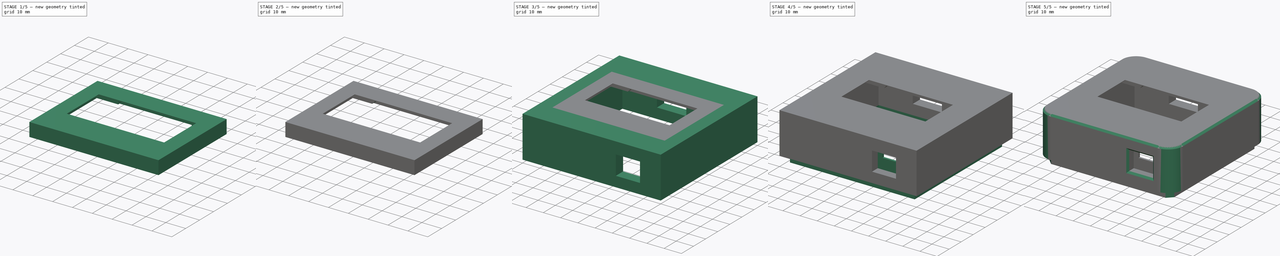
[diagram: build sequence overview — one tinted view per stage of 5, left to right]
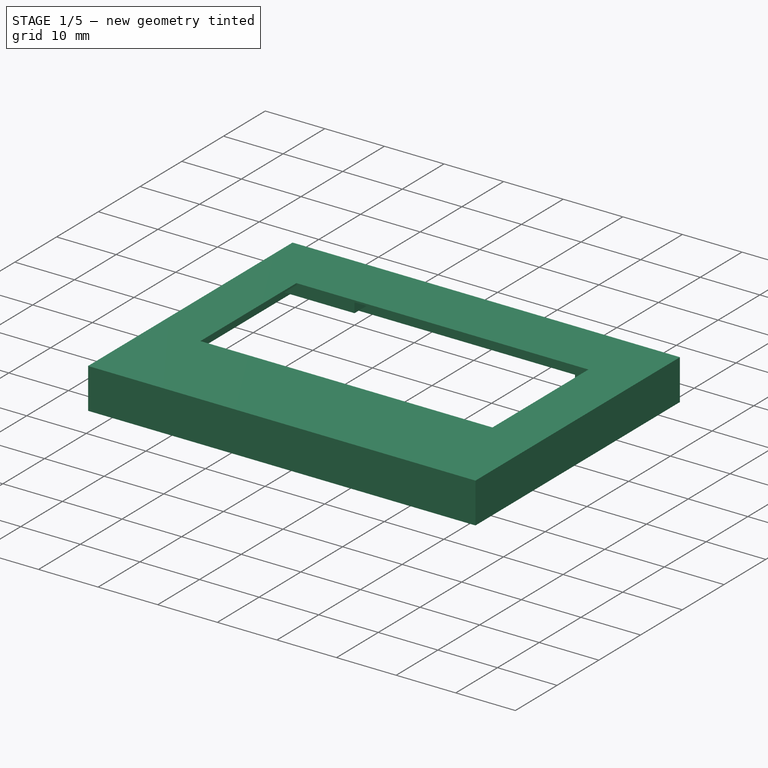
[diagram: stage 1 of 5 — iso view after this stage's code; geometry added in this stage tinted green]
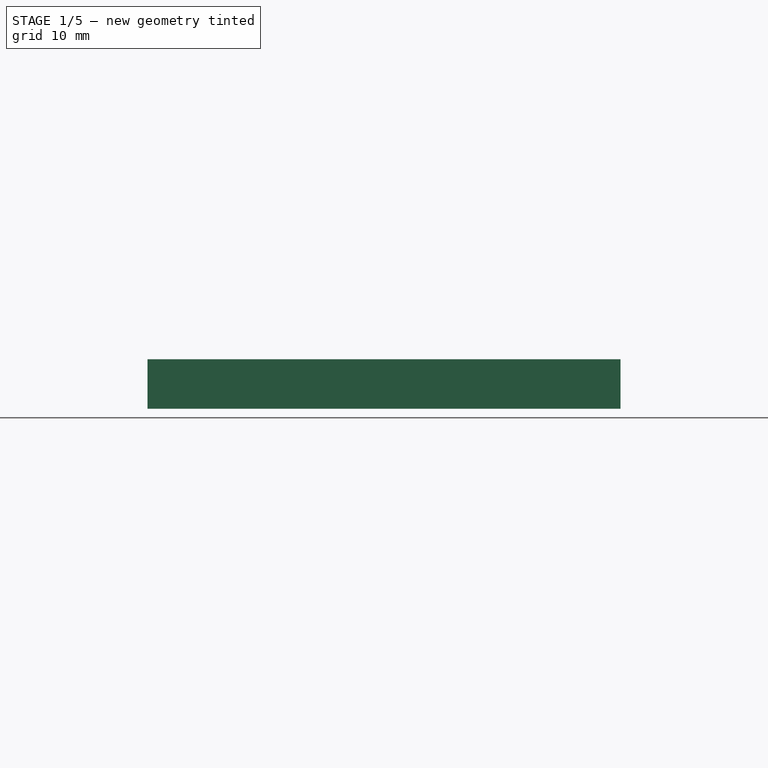
[diagram: stage 1 of 5 — front view after this stage's code; geometry added in this stage tinted green]
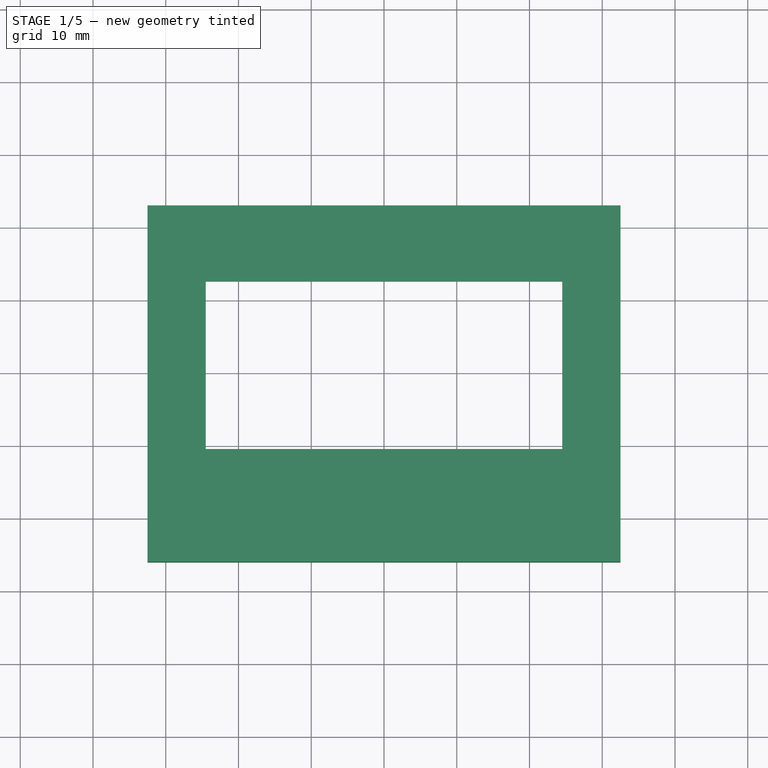
[diagram: stage 1 of 5 — top view after this stage's code; geometry added in this stage tinted green]
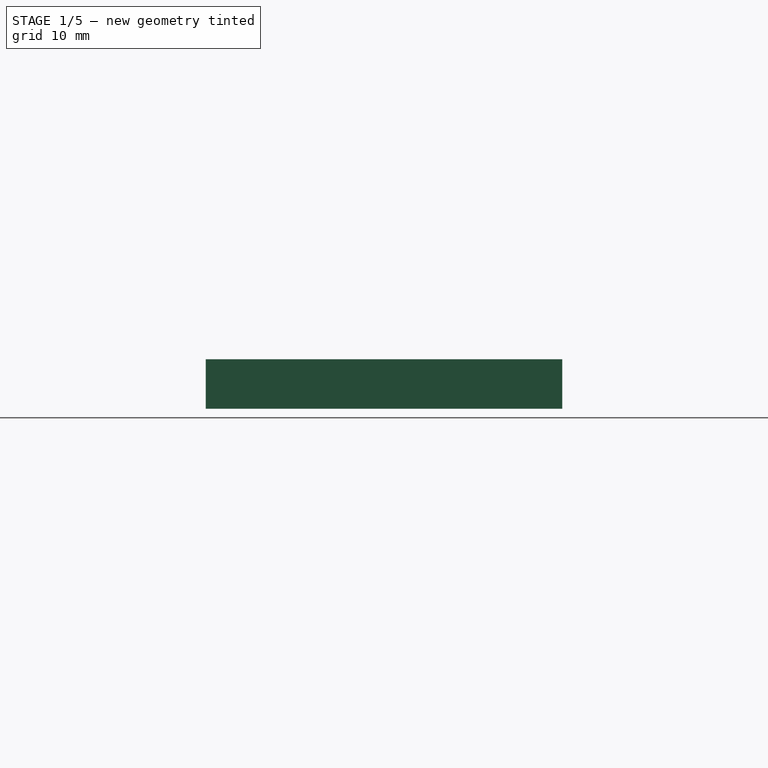
[diagram: stage 1 of 5 — right view after this stage's code; geometry added in this stage tinted green]
FCSTD DOCUMENT  (FreeCAD 0.19R24291 (Git))
Label: air_qualty_box
License: All rights reserved
LicenseURL: http://en.wikipedia.org/wiki/All_rights_reserved
objects: Sketcher::SketchObject×14, PartDesign::Pad×10, PartDesign::Chamfer×6, PartDesign::Pocket×4, PartDesign::Fillet×1, PartDesign::Body×1
note: 57 computed .brp shape members not serialized (recipe doc carries the construction recipe); baked Part::Feature solids carry a one-line shape summary decoded from their .brp

FEATURE [Sketcher::SketchObject] Sketch
  FullyConstrained = true
  MapMode = 5
  Support = -> [XY_Plane]
  sketch-geometry (8):
    g0: LineSegment StartX=-24.5 StartY=12.5 StartZ=0 EndX=24.5 EndY=12.5 EndZ=0
    g1: LineSegment StartX=24.5 StartY=12.5 StartZ=0 EndX=24.5 EndY=-10.5 EndZ=0
    g2: LineSegment StartX=24.5 StartY=-10.5 StartZ=0 EndX=-24.5 EndY=-10.5 EndZ=0
    g3: LineSegment StartX=-24.5 StartY=-10.5 StartZ=0 EndX=-24.5 EndY=12.5 EndZ=0
    g4: LineSegment StartX=-31.5 StartY=22 StartZ=0 EndX=31.5 EndY=22 EndZ=0
    g5: LineSegment StartX=31.5 StartY=22 StartZ=0 EndX=31.5 EndY=-25 EndZ=0
    g6: LineSegment StartX=31.5 StartY=-25 StartZ=0 EndX=-31.5 EndY=-25 EndZ=0
    g7: LineSegment StartX=-31.5 StartY=-25 StartZ=0 EndX=-31.5 EndY=22 EndZ=0
  constraints (24):
    c: Coincident(g0,g1)
    c: Coincident(g1,g2)
    c: Coincident(g2,g3)
    c: Coincident(g3,g0)
    c: Horizontal(g0)
    c: Horizontal(g2)
    c: Vertical(g1)
    c: Vertical(g3)
    c: Coincident(g4,g5)
    c: Coincident(g5,g6)
    c: Coincident(g6,g7)
    c: Coincident(g7,g4)
    c: Horizontal(g4)
    c: Horizontal(g6)
    c: Vertical(g5)
    c: Vertical(g7)
    c: Distance(g0) = 49
    c: Distance(g1) = 23
    c: DistanceY(g-1,g0) = 12.5
    c: DistanceX(g0,g-1) = 24.5
    c: DistanceX(g4,g0) = 7
    c: DistanceX(g1,g5) = 7
    c: DistanceY(g0,g4) = 9.5
    c: DistanceY(g6,g2) = 14.5
FEATURE [PartDesign::Pad] Pad
  Direction = (1,1,1)
  Length = 0.3
  Length2 = 100
  Profile = -> Sketch
  Type = 0
FEATURE [Sketcher::SketchObject] Sketch001
  FullyConstrained = true
  MapMode = 5
  Placement = pos=(0,0,0.3) rot=(0,0,1;0rad)
  Support = -> [Pad]
  sketch-geometry (8):
    g0: LineSegment StartX=-31.5 StartY=22 StartZ=0 EndX=31.5 EndY=22 EndZ=0
    g1: LineSegment StartX=31.5 StartY=22 StartZ=0 EndX=31.5 EndY=-25 EndZ=0
    g2: LineSegment StartX=31.5 StartY=-25 StartZ=0 EndX=-31.5 EndY=-25 EndZ=0
    g3: LineSegment StartX=-31.5 StartY=-25 StartZ=0 EndX=-31.5 EndY=22 EndZ=0
    g4: LineSegment StartX=-32.5 StartY=23 StartZ=0 EndX=32.5 EndY=23 EndZ=0
    g5: LineSegment StartX=32.5 StartY=23 StartZ=0 EndX=32.5 EndY=-26 EndZ=0
    g6: LineSegment StartX=32.5 StartY=-26 StartZ=0 EndX=-32.5 EndY=-26 EndZ=0
    g7: LineSegment StartX=-32.5 StartY=-26 StartZ=0 EndX=-32.5 EndY=23 EndZ=0
  constraints (24):
    c: Coincident(g0,g1)
    c: Coincident(g1,g2)
    c: Coincident(g2,g3)
    c: Coincident(g3,g0)
    c: Horizontal(g0)
    c: Horizontal(g2)
    c: Vertical(g1)
    c: Vertical(g3)
    c: DistanceX(g0,g-1) = 31.5
    c: DistanceX(g-1,g0) = 31.5
    c: DistanceY(g-1,g0) = 22
    c: DistanceY(g2,g-1) = 25
    c: Coincident(g4,g5)
    c: Coincident(g5,g6)
    c: Coincident(g6,g7)
    c: Coincident(g7,g4)
    c: Horizontal(g4)
    c: Horizontal(g6)
    c: Vertical(g5)
    c: Vertical(g7)
    c: DistanceX(g4,g0) = 1
    c: DistanceX(g0,g4) = 1
    c: DistanceY(g0,g4) = 1
    c: DistanceY(g5,g1) = 1
FEATURE [PartDesign::Pad] Pad001
  BaseFeature = -> Pad
  Direction = (1,1,1)
  Length = 6.8
  Length2 = 100
  Profile = -> Sketch001
  Reversed = true
  Type = 0
FEATURE [Sketcher::SketchObject] Sketch002
  FullyConstrained = true
  MapMode = 5
  Placement = pos=(0,0,0) rot=(1,0,0;3.14159rad)
  Support = -> [Pad001]
  sketch-geometry (24):
    g0: LineSegment StartX=-31.5 StartY=25 StartZ=0 EndX=31.5 EndY=25 EndZ=0
    g1: LineSegment StartX=31.5 StartY=25 StartZ=0 EndX=31.5 EndY=-22 EndZ=0
    g2: LineSegment StartX=31.5 StartY=-22 StartZ=0 EndX=-31.5 EndY=-22 EndZ=0
    g3: LineSegment StartX=-31.5 StartY=-22 StartZ=0 EndX=-31.5 EndY=25 EndZ=0
    g4: LineSegment StartX=-31.5 StartY=25 StartZ=0 EndX=-27.35 EndY=25 EndZ=0
    g5: LineSegment StartX=-27.35 StartY=25 StartZ=0 EndX=-27.35 EndY=20.85 EndZ=0
    g6: LineSegment StartX=-27.35 StartY=20.85 StartZ=0 EndX=-31.5 EndY=20.85 EndZ=0
    g7: LineSegment StartX=-31.5 StartY=20.85 StartZ=0 EndX=-31.5 EndY=25 EndZ=0
    g8: LineSegment StartX=-31.5 StartY=-22 StartZ=0 EndX=-27.35 EndY=-22 EndZ=0
    g9: LineSegment StartX=-27.35 StartY=-22 StartZ=0 EndX=-27.35 EndY=-17.85 EndZ=0
    g10: LineSegment StartX=-27.35 StartY=-17.85 StartZ=0 EndX=-31.5 EndY=-17.85 EndZ=0
    g11: LineSegment StartX=-31.5 StartY=-17.85 StartZ=0 EndX=-31.5 EndY=-22 EndZ=0
    g12: LineSegment StartX=31.5 StartY=-22 StartZ=0 EndX=27.35 EndY=-22 EndZ=0
    g13: LineSegment StartX=27.35 StartY=-22 StartZ=0 EndX=27.35 EndY=-17.85 EndZ=0
    g14: LineSegment StartX=27.35 StartY=-17.85 StartZ=0 EndX=31.5 EndY=-17.85 EndZ=0
    g15: LineSegment StartX=31.5 StartY=-17.85 StartZ=0 EndX=31.5 EndY=-22 EndZ=0
    g16: LineSegment StartX=31.5 StartY=25 StartZ=0 EndX=27.35 EndY=25 EndZ=0
    g17: LineSegment StartX=27.35 StartY=25 StartZ=0 EndX=27.35 EndY=20.85 EndZ=0
    g18: LineSegment StartX=27.35 StartY=20.85 StartZ=0 EndX=31.5 EndY=20.85 EndZ=0
    g19: LineSegment StartX=31.5 StartY=20.85 StartZ=0 EndX=31.5 EndY=25 EndZ=0
    g20: Circle CenterX=-29.17 CenterY=22.67 CenterZ=0 NormalX=0 NormalY=0 NormalZ=1 AngleXU=0 Radius=1.1
    g21: Circle CenterX=-29.17 CenterY=-19.67 CenterZ=0 NormalX=0 NormalY=0 NormalZ=1 AngleXU=0 Radius=1.1
    g22: Circle CenterX=29.17 CenterY=-19.67 CenterZ=0 NormalX=0 NormalY=0 NormalZ=1 AngleXU=0 Radius=1.1
    g23: Circle CenterX=29.17 CenterY=22.67 CenterZ=0 NormalX=0 NormalY=0 NormalZ=1 AngleXU=0 Radius=1.1
  constraints (68):
    c: Coincident(g0,g1)
    c: Coincident(g1,g2)
    c: Coincident(g2,g3)
    c: Coincident(g3,g0)
    c: Horizontal(g0)
    c: Horizontal(g2)
    c: Vertical(g1)
    c: Vertical(g3)
    c: DistanceY(g-1,g0) = 25
    c: DistanceY(g2,g-1) = 22
    c: DistanceX(g2,g-1) = 31.5
    c: DistanceX(g-1,g0) = 31.5
    c: Coincident(g4,g5)
    c: Coincident(g5,g6)
    c: Coincident(g6,g7)
    c: Coincident(g7,g4)
    c: Horizontal(g4)
    c: Horizontal(g6)
    c: Vertical(g5)
    c: Vertical(g7)
    c: Coincident(g4,g0)
    c: Coincident(g8,g9)
    c: Coincident(g9,g10)
    c: Coincident(g10,g11)
    c: Coincident(g11,g8)
    c: Horizontal(g8)
    c: Horizontal(g10)
    c: Vertical(g9)
    c: Vertical(g11)
    c: Coincident(g8,g2)
    c: Coincident(g12,g13)
    c: Coincident(g13,g14)
    c: Coincident(g14,g15)
    c: Coincident(g15,g12)
    c: Horizontal(g12)
    c: Horizontal(g14)
    c: Vertical(g13)
    c: Vertical(g15)
    c: Coincident(g12,g1)
    c: Coincident(g16,g17)
    c: Coincident(g17,g18)
    c: Coincident(g18,g19)
    c: Coincident(g19,g16)
    c: Horizontal(g16)
    c: Horizontal(g18)
    c: Vertical(g17)
    c: Vertical(g19)
    c: Coincident(g16,g0)
    c: Distance(g6) = 4.15
    c: Distance(g5) = 4.15
    c: Distance(g17) = 4.15
    c: Distance(g18) = 4.15
    c: Distance(g14) = 4.15
    c: Distance(g13) = 4.15
    c: Distance(g9) = 4.15
    c: Distance(g10) = 4.15
    c: DistanceX(g20,g5) = 1.82
    c: DistanceY(g5,g20) = 1.82
    c: DistanceY(g17,g23) = 1.82
    c: DistanceX(g17,g23) = 1.82
    c: DistanceX(g13,g22) = 1.82
    c: DistanceY(g22,g13) = 1.82
    c: DistanceY(g21,g9) = 1.82
    c: DistanceX(g21,g9) = 1.82
    c: Radius(g21) = 1.1
    c: Radius(g22) = 1.1
    c: Radius(g23) = 1.1
    c: Radius(g20) = 1.1
FEATURE [PartDesign::Pad] Pad002
  BaseFeature = -> Pad001
  Direction = (1,1,1)
  Length = 4.7
  Length2 = 100
  Profile = -> Sketch002
  Type = 0
FEATURE [Sketcher::SketchObject] Sketch003
  FullyConstrained = true
  MapMode = 5
  Placement = pos=(0,0,0) rot=(1,0,0;3.14159rad)
  Support = -> [Pad002]
  sketch-geometry (20):
    g0: LineSegment StartX=-31.5 StartY=25 StartZ=0 EndX=31.5 EndY=25 EndZ=0
    g1: LineSegment StartX=31.5 StartY=25 StartZ=0 EndX=31.5 EndY=-22 EndZ=0
    g2: LineSegment StartX=31.5 StartY=-22 StartZ=0 EndX=-31.5 EndY=-22 EndZ=0
    g3: LineSegment StartX=-31.5 StartY=-22 StartZ=0 EndX=-31.5 EndY=25 EndZ=0
    g4: LineSegment StartX=-27.35 StartY=-17.85 StartZ=0 EndX=-18.5 EndY=-17.85 EndZ=0
    g5: LineSegment StartX=-18.5 StartY=-17.85 StartZ=0 EndX=-18.5 EndY=-22 EndZ=0
    g6: LineSegment StartX=-18.5 StartY=-22 StartZ=0 EndX=-27.35 EndY=-22 EndZ=0
    g7: LineSegment StartX=-27.35 StartY=-22 StartZ=0 EndX=-27.35 EndY=-17.85 EndZ=0
    g8: LineSegment StartX=27.35 StartY=-17.85 StartZ=0 EndX=18.5 EndY=-17.85 EndZ=0
    g9: LineSegment StartX=18.5 StartY=-17.85 StartZ=0 EndX=18.5 EndY=-22 EndZ=0
    g10: LineSegment StartX=18.5 StartY=-22 StartZ=0 EndX=27.35 EndY=-22 EndZ=0
    g11: LineSegment StartX=27.35 StartY=-22 StartZ=0 EndX=27.35 EndY=-17.85 EndZ=0
    g12: LineSegment StartX=-27.35 StartY=20.85 StartZ=0 EndX=-11.5 EndY=20.85 EndZ=0
    g13: LineSegment StartX=-11.5 StartY=20.85 StartZ=0 EndX=-11.5 EndY=25 EndZ=0
    g14: LineSegment StartX=-11.5 StartY=25 StartZ=0 EndX=-27.35 EndY=25 EndZ=0
    g15: LineSegment StartX=-27.35 StartY=25 StartZ=0 EndX=-27.35 EndY=20.85 EndZ=0
    g16: LineSegment StartX=27.35 StartY=20.85 StartZ=0 EndX=11.5 EndY=20.85 EndZ=0
    g17: LineSegment StartX=11.5 StartY=20.85 StartZ=0 EndX=11.5 EndY=25 EndZ=0
    g18: LineSegment StartX=11.5 StartY=25 StartZ=0 EndX=27.35 EndY=25 EndZ=0
    g19: LineSegment StartX=27.35 StartY=25 StartZ=0 EndX=27.35 EndY=20.85 EndZ=0
  constraints (60):
    c: Coincident(g0,g1)
    c: Coincident(g1,g2)
    c: Coincident(g2,g3)
    c: Coincident(g3,g0)
    c: Horizontal(g0)
    c: Horizontal(g2)
    c: Vertical(g1)
    c: Vertical(g3)
    c: DistanceX(g0,g-1) = 31.5
    c: DistanceY(g-1,g0) = 25
    c: Distance(g0) = 63
    c: Distance(g1) = 47
    c: Coincident(g4,g5)
    c: Coincident(g5,g6)
    c: Coincident(g6,g7)
    c: Coincident(g7,g4)
    c: Horizontal(g4)
    c: Horizontal(g6)
    c: Vertical(g5)
    c: Vertical(g7)
    c: PointOnObject(g5,g2)
    c: Coincident(g8,g9)
    c: Coincident(g9,g10)
    c: Coincident(g10,g11)
    c: Coincident(g11,g8)
    c: Horizontal(g8)
    c: Horizontal(g10)
    c: Vertical(g9)
    c: Vertical(g11)
    c: PointOnObject(g9,g2)
    c: Distance(g7) = 4.15
    c: Distance(g9) = 4.15
    c: DistanceX(g10,g1) = 4.15
    c: DistanceX(g2,g6) = 4.15
    c: Distance(g4) = 8.85
    c: Distance(g8) = 8.85
    c: Coincident(g12,g13)
    c: Coincident(g13,g14)
    c: Coincident(g14,g15)
    c: Coincident(g15,g12)
    c: Horizontal(g12)
    c: Horizontal(g14)
    c: Vertical(g13)
    c: Vertical(g15)
    c: PointOnObject(g13,g0)
    c: Coincident(g16,g17)
    c: Coincident(g17,g18)
    c: Coincident(g18,g19)
    c: Coincident(g19,g16)
    c: Horizontal(g16)
    c: Horizontal(g18)
    c: Vertical(g17)
    c: Vertical(g19)
    c: PointOnObject(g17,g0)
    c: DistanceX(g18,g0) = 4.15
    c: DistanceX(g0,g14) = 4.15
    c: Distance(g15) = 4.15
    c: Distance(g19) = 4.15
    c: Distance(g12) = 15.85
    c: Distance(g16) = 15.85
FEATURE [PartDesign::Pad] Pad003
  BaseFeature = -> Pad002
  Direction = (1,1,1)
  Length = 10
  Length2 = 100
  Profile = -> Sketch003
  Type = 3
  UpToFace = -> Pad002 [Face24]
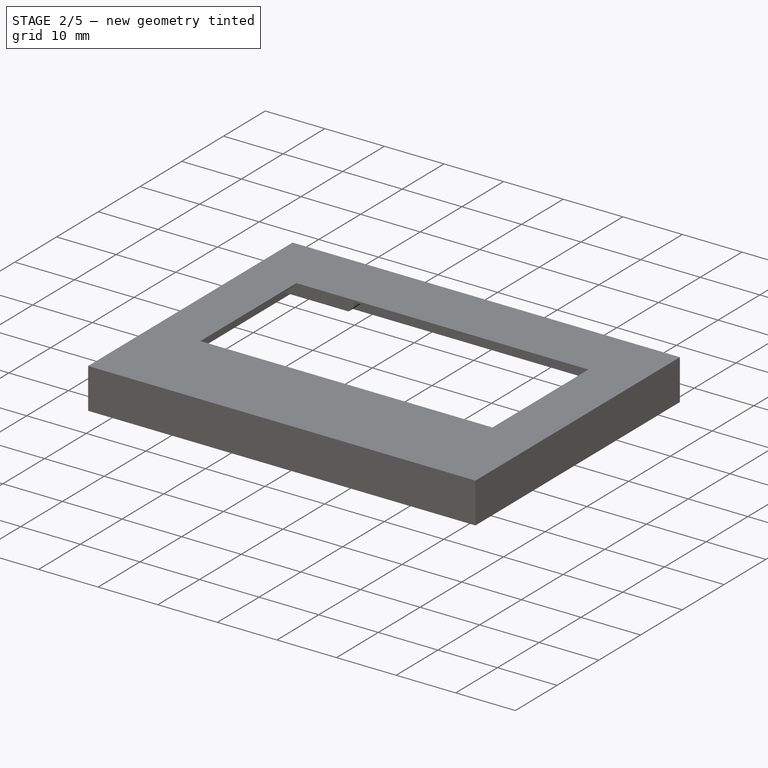
[diagram: stage 2 of 5 — iso view after this stage's code; geometry added in this stage tinted green]
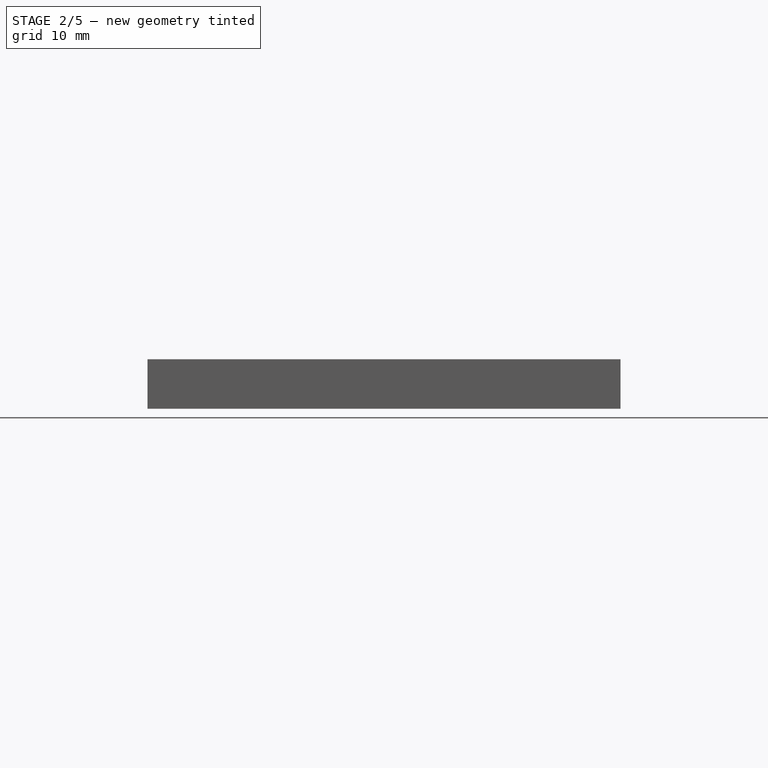
[diagram: stage 2 of 5 — front view after this stage's code; geometry added in this stage tinted green]
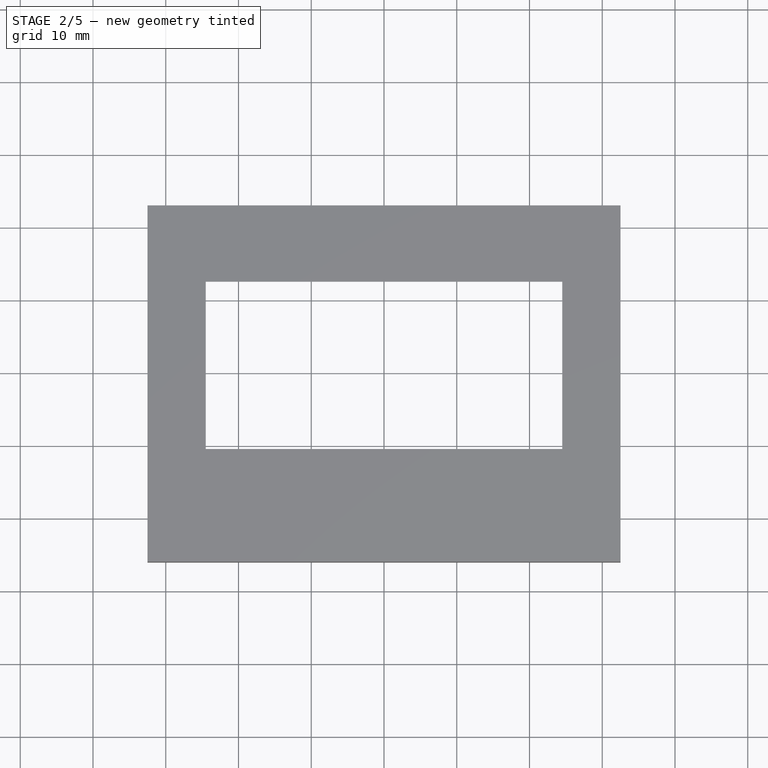
[diagram: stage 2 of 5 — top view after this stage's code; geometry added in this stage tinted green]
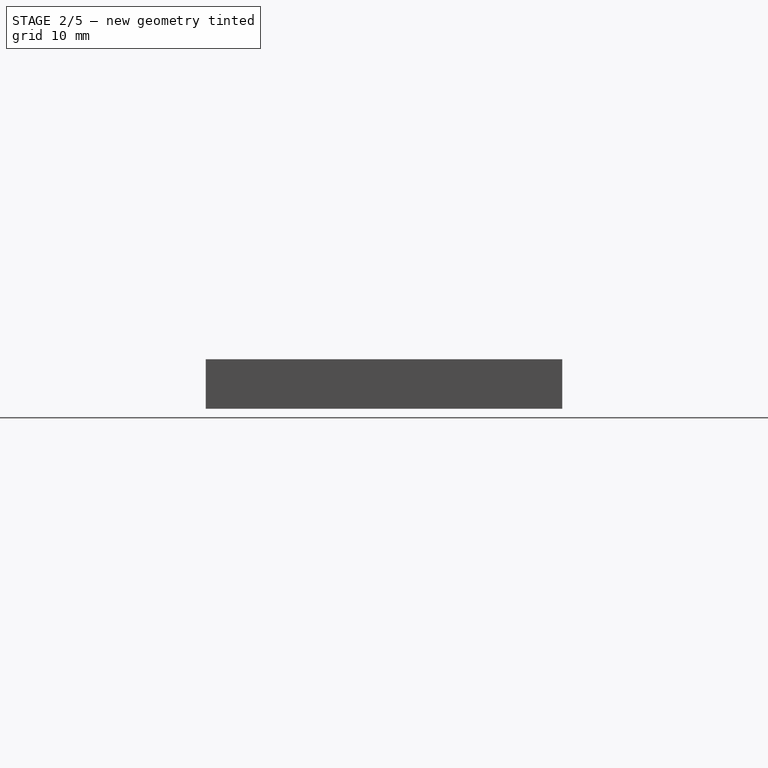
[diagram: stage 2 of 5 — right view after this stage's code; geometry added in this stage tinted green]
FEATURE [Sketcher::SketchObject] Sketch004
  FullyConstrained = true
  MapMode = 5
  Placement = pos=(0,0,0) rot=(1,0,0;3.14159rad)
  Support = -> [Pad003]
  sketch-geometry (6):
    g0: LineSegment StartX=-18.5 StartY=-22 StartZ=0 EndX=18.5 EndY=-22 EndZ=0
    g1: LineSegment StartX=18.5 StartY=-22 StartZ=0 EndX=18.5 EndY=-17.85 EndZ=0
    g2: LineSegment StartX=18.5 StartY=-17.85 StartZ=0 EndX=-18.5 EndY=-17.85 EndZ=0
    g3: LineSegment StartX=-18.5 StartY=-17.85 StartZ=0 EndX=-18.5 EndY=-22 EndZ=0
    g4: GeomPoint X=-31.5 Y=-22 Z=0
    g5: GeomPoint X=31.5 Y=-22 Z=0
  constraints (16):
    c: Coincident(g0,g1)
    c: Coincident(g1,g2)
    c: Coincident(g2,g3)
    c: Coincident(g3,g0)
    c: Horizontal(g0)
    c: Horizontal(g2)
    c: Vertical(g1)
    c: Vertical(g3)
    c: DistanceX(g4,g-1) = 31.5
    c: DistanceY(g4,g-1) = 22
    c: DistanceY(g4,g0) = 0
    c: Distance(g3) = 4.15
    c: DistanceX(g4,g0) = 13
    c: DistanceX(g-1,g5) = 31.5
    c: DistanceY(g5,g-1) = 22
    c: DistanceX(g0,g5) = 13
FEATURE [PartDesign::Pad] Pad004
  BaseFeature = -> Pad003
  Direction = (1,1,1)
  Length = 1.5
  Length2 = 100
  Profile = -> Sketch004
  Type = 0
FEATURE [PartDesign::Chamfer] Chamfer
  Angle = 45
  Base = -> Pad004 [Edge99,Edge97,Edge100,Edge98]
  BaseFeature = -> Pad004
  ChamferType = 0
  FlipDirection = false
  Size = 1
  Size2 = 1
  SupportTransform = false
FEATURE [Sketcher::SketchObject] Sketch005
  FullyConstrained = true
  MapMode = 5
  Placement = pos=(0,0,0) rot=(1,0,0;3.14159rad)
  Support = -> [Chamfer]
  sketch-geometry (11):
    g0: LineSegment StartX=-11.5 StartY=20.85 StartZ=0 EndX=11.5 EndY=20.85 EndZ=0
    g1: LineSegment StartX=11.5 StartY=20.85 StartZ=0 EndX=11.5 EndY=25 EndZ=0
    g2: LineSegment StartX=11.5 StartY=25 StartZ=0 EndX=-11.5 EndY=25 EndZ=0
    g3: LineSegment StartX=-11.5 StartY=25 StartZ=0 EndX=-11.5 EndY=20.85 EndZ=0
    g4: GeomPoint X=-31.5 Y=25 Z=0
    g5: GeomPoint X=31.5 Y=25 Z=0
    g6: LineSegment StartX=-31.5 StartY=15.85 StartZ=0 EndX=31.5 EndY=15.85 EndZ=0
    g7: LineSegment StartX=31.5 StartY=15.85 StartZ=0 EndX=31.5 EndY=20.85 EndZ=0
    g8: LineSegment StartX=11.5 StartY=20.85 StartZ=0 EndX=31.5 EndY=20.85 EndZ=0
    g9: LineSegment StartX=-31.5 StartY=15.85 StartZ=0 EndX=-31.5 EndY=20.85 EndZ=0
    g10: LineSegment StartX=-31.5 StartY=20.85 StartZ=0 EndX=-11.5 EndY=20.85 EndZ=0
  constraints (30):
    c: Coincident(g0,g1)
    c: Coincident(g1,g2)
    c: Coincident(g2,g3)
    c: Coincident(g3,g0)
    c: Horizontal(g0)
    c: Horizontal(g2)
    c: Vertical(g1)
    c: Vertical(g3)
    c: DistanceX(g4,g-1) = 31.5
    c: DistanceX(g-1,g5) = 31.5
    c: DistanceY(g-1,g4) = 25
    c: DistanceY(g-1,g5) = 25
    c: DistanceY(g2,g4) = 0
    c: DistanceX(g1,g5) = 20
    c: DistanceX(g4,g2) = 20
    c: Distance(g3) = 4.15
    c: Horizontal(g6)
    c: Coincident(g7,g6)
    c: Vertical(g7)
    c: Coincident(g8,g1)
    c: Coincident(g8,g7)
    c: Horizontal(g8)
    c: Coincident(g9,g6)
    c: Vertical(g9)
    c: Coincident(g10,g9)
    c: Coincident(g10,g3)
    c: Horizontal(g10)
    c: DistanceX(g7,g5) = 0
    c: DistanceX(g4,g9) = 0
    c: Distance(g9) = 5
FEATURE [PartDesign::Pad] Pad005
  BaseFeature = -> Chamfer
  Direction = (1,1,1)
  Length = 0.5
  Length2 = 100
  Profile = -> Sketch005
  Type = 0
FEATURE [PartDesign::Chamfer] Chamfer001
  Angle = 45
  Base = -> Pad005 [Edge123,Edge127]
  BaseFeature = -> Pad005
  ChamferType = 0
  FlipDirection = false
  Size = 1.5
  Size2 = 1
  SupportTransform = false
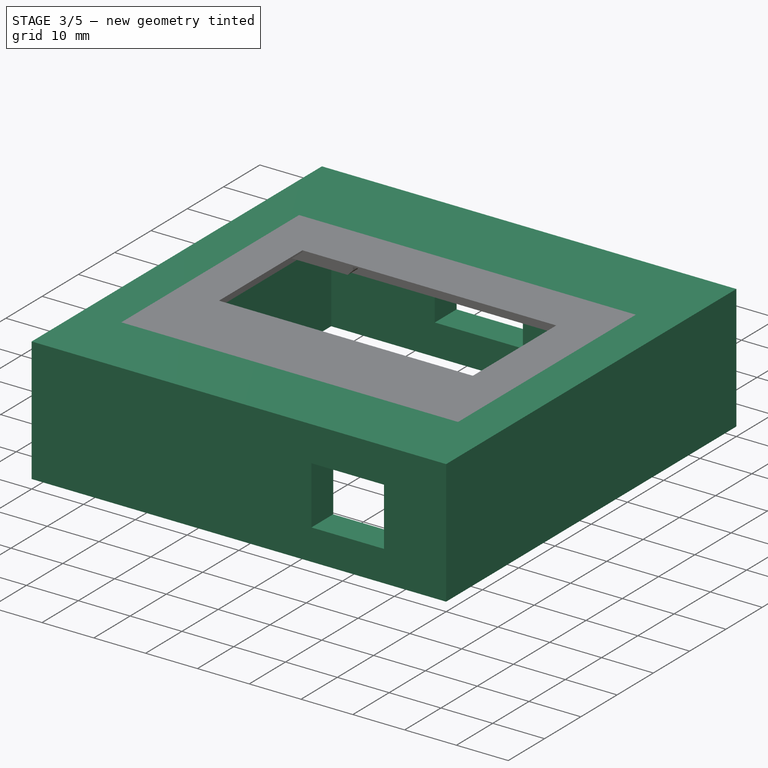
[diagram: stage 3 of 5 — iso view after this stage's code; geometry added in this stage tinted green]
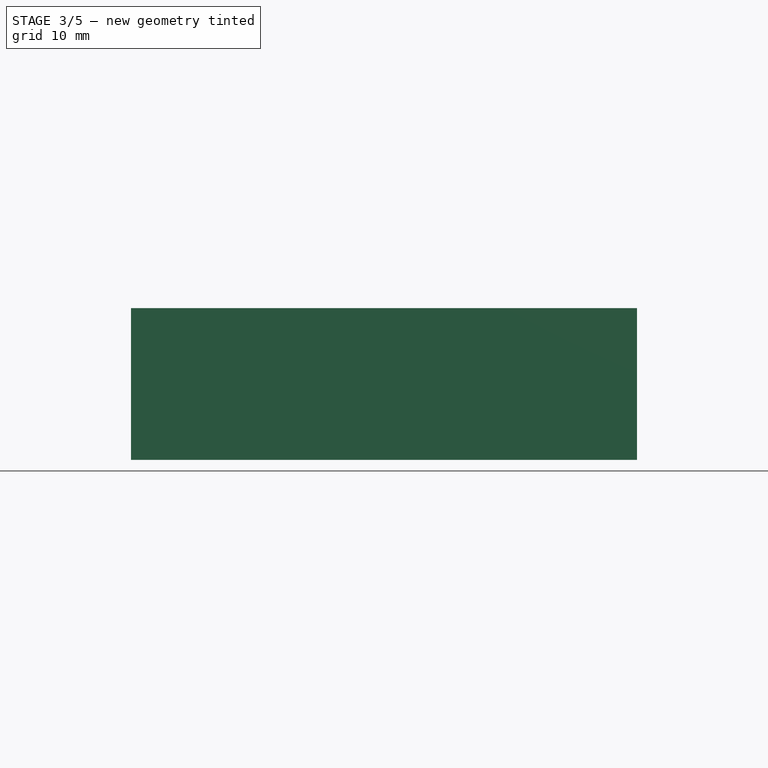
[diagram: stage 3 of 5 — front view after this stage's code; geometry added in this stage tinted green]
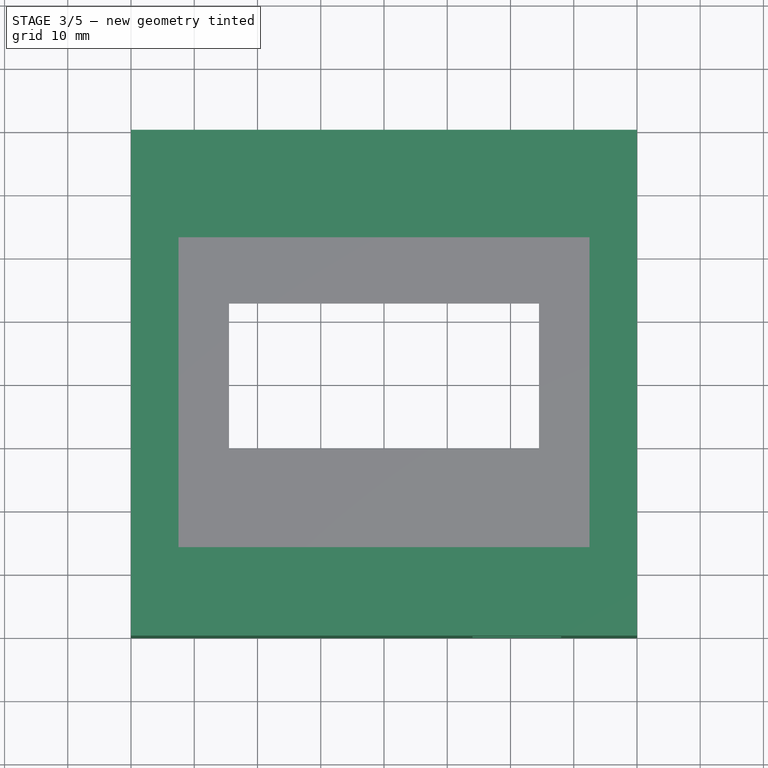
[diagram: stage 3 of 5 — top view after this stage's code; geometry added in this stage tinted green]
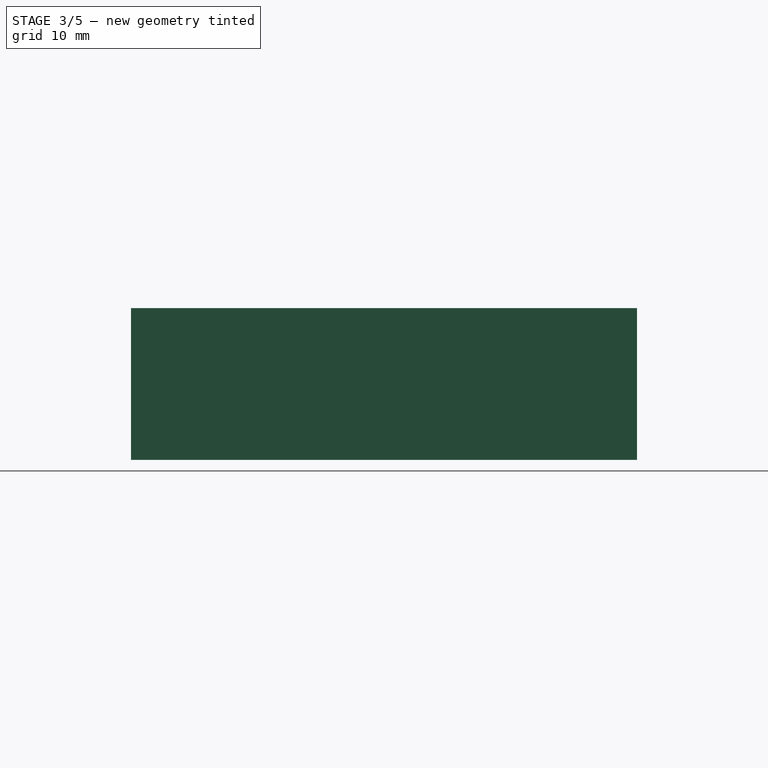
[diagram: stage 3 of 5 — right view after this stage's code; geometry added in this stage tinted green]
FEATURE [Sketcher::SketchObject] Sketch006
  FullyConstrained = true
  MapMode = 5
  Placement = pos=(0,0,0.3) rot=(0,0,1;0rad)
  Support = -> [Chamfer001]
  sketch-geometry (8):
    g0: LineSegment StartX=-40 StartY=-40 StartZ=0 EndX=40 EndY=-40 EndZ=0
    g1: LineSegment StartX=40 StartY=-40 StartZ=0 EndX=40 EndY=40 EndZ=0
    g2: LineSegment StartX=40 StartY=40 StartZ=0 EndX=-40 EndY=40 EndZ=0
    g3: LineSegment StartX=-40 StartY=40 StartZ=0 EndX=-40 EndY=-40 EndZ=0
    g4: LineSegment StartX=-32.5 StartY=23 StartZ=0 EndX=32.5 EndY=23 EndZ=0
    g5: LineSegment StartX=32.5 StartY=23 StartZ=0 EndX=32.5 EndY=-26 EndZ=0
    g6: LineSegment StartX=32.5 StartY=-26 StartZ=0 EndX=-32.5 EndY=-26 EndZ=0
    g7: LineSegment StartX=-32.5 StartY=-26 StartZ=0 EndX=-32.5 EndY=23 EndZ=0
  constraints (24):
    c: Coincident(g0,g1)
    c: Coincident(g1,g2)
    c: Coincident(g2,g3)
    c: Coincident(g3,g0)
    c: Horizontal(g0)
    c: Horizontal(g2)
    c: Vertical(g1)
    c: Vertical(g3)
    c: DistanceX(g0,g-1) = 40
    c: DistanceX(g-1,g1) = 40
    c: DistanceY(g-1,g2) = 40
    c: DistanceY(g0,g-1) = 40
    c: Coincident(g4,g5)
    c: Coincident(g5,g6)
    c: Coincident(g6,g7)
    c: Coincident(g7,g4)
    c: Horizontal(g4)
    c: Horizontal(g6)
    c: Vertical(g5)
    c: Vertical(g7)
    c: DistanceX(g-1,g5) = 32.5
    c: DistanceX(g4,g-1) = 32.5
    c: DistanceY(g6,g-1) = 26
    c: DistanceY(g-1,g4) = 23
FEATURE [PartDesign::Pad] Pad006
  BaseFeature = -> Chamfer001
  Direction = (1,1,1)
  Length = 24
  Length2 = 100
  Profile = -> Sketch006
  Reversed = true
  Type = 0
FEATURE [Sketcher::SketchObject] Sketch007
  FullyConstrained = true
  MapMode = 5
  Placement = pos=(0,0,-23.7) rot=(1,0,0;3.14159rad)
  Support = -> [Pad006]
  sketch-geometry (16):
    g0: LineSegment StartX=-40 StartY=40 StartZ=0 EndX=40 EndY=40 EndZ=0
    g1: LineSegment StartX=40 StartY=40 StartZ=0 EndX=40 EndY=-40 EndZ=0
    g2: LineSegment StartX=40 StartY=-40 StartZ=0 EndX=-40 EndY=-40 EndZ=0
    g3: LineSegment StartX=-40 StartY=-40 StartZ=0 EndX=-40 EndY=40 EndZ=0
    g4: LineSegment StartX=-34 StartY=34 StartZ=0 EndX=34 EndY=34 EndZ=0
    g5: LineSegment StartX=34 StartY=34 StartZ=0 EndX=34 EndY=-34 EndZ=0
    g6: LineSegment StartX=34 StartY=-34 StartZ=0 EndX=-34 EndY=-34 EndZ=0
    g7: LineSegment StartX=-34 StartY=-34 StartZ=0 EndX=-34 EndY=34 EndZ=0
    g8: LineSegment StartX=-33.5 StartY=33.5 StartZ=0 EndX=33.5 EndY=33.5 EndZ=0
    g9: LineSegment StartX=33.5 StartY=33.5 StartZ=0 EndX=33.5 EndY=-33.5 EndZ=0
    g10: LineSegment StartX=33.5 StartY=-33.5 StartZ=0 EndX=-33.5 EndY=-33.5 EndZ=0
    g11: LineSegment StartX=-33.5 StartY=-33.5 StartZ=0 EndX=-33.5 EndY=33.5 EndZ=0
    g12: LineSegment StartX=-32.5 StartY=26 StartZ=0 EndX=32.5 EndY=26 EndZ=0
    g13: LineSegment StartX=32.5 StartY=26 StartZ=0 EndX=32.5 EndY=-23 EndZ=0
    g14: LineSegment StartX=32.5 StartY=-23 StartZ=0 EndX=-32.5 EndY=-23 EndZ=0
    g15: LineSegment StartX=-32.5 StartY=-23 StartZ=0 EndX=-32.5 EndY=26 EndZ=0
  constraints (48):
    c: Coincident(g0,g1)
    c: Coincident(g1,g2)
    c: Coincident(g2,g3)
    c: Coincident(g3,g0)
    c: Horizontal(g0)
    c: Horizontal(g2)
    c: Vertical(g1)
    c: Vertical(g3)
    c: DistanceY(g-1,g0) = 40
    c: DistanceX(g0,g-1) = 40
    c: Distance(g0) = 80
    c: Distance(g1) = 80
    c: Coincident(g4,g5)
    c: Coincident(g5,g6)
    c: Coincident(g6,g7)
    c: Coincident(g7,g4)
    c: Horizontal(g4)
    c: Horizontal(g6)
    c: Vertical(g5)
    c: Vertical(g7)
    c: DistanceX(g0,g4) = 6
    c: DistanceY(g4,g0) = 6
    c: DistanceY(g2,g6) = 6
    c: DistanceX(g5,g1) = 6
    c: Coincident(g8,g9)
    c: Coincident(g9,g10)
    c: Coincident(g10,g11)
    c: Coincident(g11,g8)
    c: Horizontal(g8)
    c: Horizontal(g10)
    c: Vertical(g9)
    c: Vertical(g11)
    c: Distance(g8) = 67
    c: Distance(g9) = 67
    c: DistanceX(g8,g-1) = 33.5
    c: DistanceY(g-1,g8) = 33.5
    c: Coincident(g12,g13)
    c: Coincident(g13,g14)
    c: Coincident(g14,g15)
    c: Coincident(g15,g12)
    c: Horizontal(g12)
    c: Horizontal(g14)
    c: Vertical(g13)
    c: Vertical(g15)
    c: DistanceX(g-1,g13) = 32.5
    c: DistanceX(g14,g-1) = 32.5
    c: DistanceY(g13,g-1) = 23
    c: DistanceY(g-1,g12) = 26
FEATURE [PartDesign::Pocket] Pocket
  BaseFeature = -> Pad006
  Length = 0
  Length2 = 100
  Profile = -> Sketch007
  Type = 3
  UpToFace = -> Pad006 [Face11]
FEATURE [Sketcher::SketchObject] Sketch008
  FullyConstrained = true
  MapMode = 5
  Placement = pos=(0,-34,0) rot=(0,0.707107,0.707107;3.14159rad)
  Support = -> [Pocket]
  sketch-geometry (5):
    g0: LineSegment StartX=-28 StartY=-6.5 StartZ=0 EndX=-14 EndY=-6.5 EndZ=0
    g1: LineSegment StartX=-14 StartY=-6.5 StartZ=0 EndX=-14 EndY=-17.7 EndZ=0
    g2: LineSegment StartX=-14 StartY=-17.7 StartZ=0 EndX=-28 EndY=-17.7 EndZ=0
    g3: LineSegment StartX=-28 StartY=-17.7 StartZ=0 EndX=-28 EndY=-6.5 EndZ=0
    g4: GeomPoint X=-23 Y=-11.5 Z=0
  constraints (14):
    c: Coincident(g0,g1)
    c: Coincident(g1,g2)
    c: Coincident(g2,g3)
    c: Coincident(g3,g0)
    c: Horizontal(g0)
    c: Horizontal(g2)
    c: Vertical(g1)
    c: Vertical(g3)
    c: DistanceY(g4,g-1) = 11.5
    c: DistanceX(g0,g4) = 5
    c: Distance(g0) = 14
    c: DistanceY(g4,g0) = 5
    c: Distance(g3) = 11.2
    c: DistanceX(g4,g-1) = 23
FEATURE [PartDesign::Pocket] Pocket001
  BaseFeature = -> Pocket
  Length = 0
  Length2 = 100
  Profile = -> Sketch008
  Type = 3
  UpToFace = -> Pocket [Face57]
FEATURE [Sketcher::SketchObject] Sketch009
  FullyConstrained = true
  MapMode = 5
  Placement = pos=(0,34,0) rot=(1,0,0;1.5708rad)
  Support = -> [Pocket001]
  sketch-geometry (4):
    g0: LineSegment StartX=-14 StartY=-17.7 StartZ=0 EndX=3 EndY=-17.7 EndZ=0
    g1: LineSegment StartX=3 StartY=-17.7 StartZ=0 EndX=3 EndY=-9.7 EndZ=0
    g2: LineSegment StartX=3 StartY=-9.7 StartZ=0 EndX=-14 EndY=-9.7 EndZ=0
    g3: LineSegment StartX=-14 StartY=-9.7 StartZ=0 EndX=-14 EndY=-17.7 EndZ=0
  constraints (12):
    c: Coincident(g0,g1)
    c: Coincident(g1,g2)
    c: Coincident(g2,g3)
    c: Coincident(g3,g0)
    c: Horizontal(g0)
    c: Horizontal(g2)
    c: Vertical(g1)
    c: Vertical(g3)
    c: DistanceX(g0,g-1) = 14
    c: DistanceY(g0,g-1) = 17.7
    c: Distance(g3) = 8
    c: Distance(g2) = 17
FEATURE [PartDesign::Pocket] Pocket002
  BaseFeature = -> Pocket001
  Length = 0
  Length2 = 100
  Profile = -> Sketch009
  Type = 3
  UpToFace = -> Pocket001 [Face64]
FEATURE [Sketcher::SketchObject] Sketch010
  FullyConstrained = true
  MapMode = 5
  Placement = pos=(0,0,-6.5) rot=(1,0,0;3.14159rad)
  Support = -> [Pocket002]
  sketch-geometry (4):
    g0: LineSegment StartX=8 StartY=26 StartZ=0 EndX=34 EndY=26 EndZ=0
    g1: LineSegment StartX=34 StartY=26 StartZ=0 EndX=34 EndY=34 EndZ=0
    g2: LineSegment StartX=34 StartY=34 StartZ=0 EndX=8 EndY=34 EndZ=0
    g3: LineSegment StartX=8 StartY=34 StartZ=0 EndX=8 EndY=26 EndZ=0
  constraints (12):
    c: Coincident(g0,g1)
    c: Coincident(g1,g2)
    c: Coincident(g2,g3)
    c: Coincident(g3,g0)
    c: Horizontal(g0)
    c: Horizontal(g2)
    c: Vertical(g1)
    c: Vertical(g3)
    c: Distance(g0) = 26
    c: DistanceX(g-1,g1) = 34
    c: DistanceY(g-1,g1) = 34
    c: Distance(g3) = 8
FEATURE [PartDesign::Pad] Pad007
  BaseFeature = -> Pocket002
  Direction = (1,1,1)
  Length = 2
  Length2 = 100
  Profile = -> Sketch010
  Type = 0
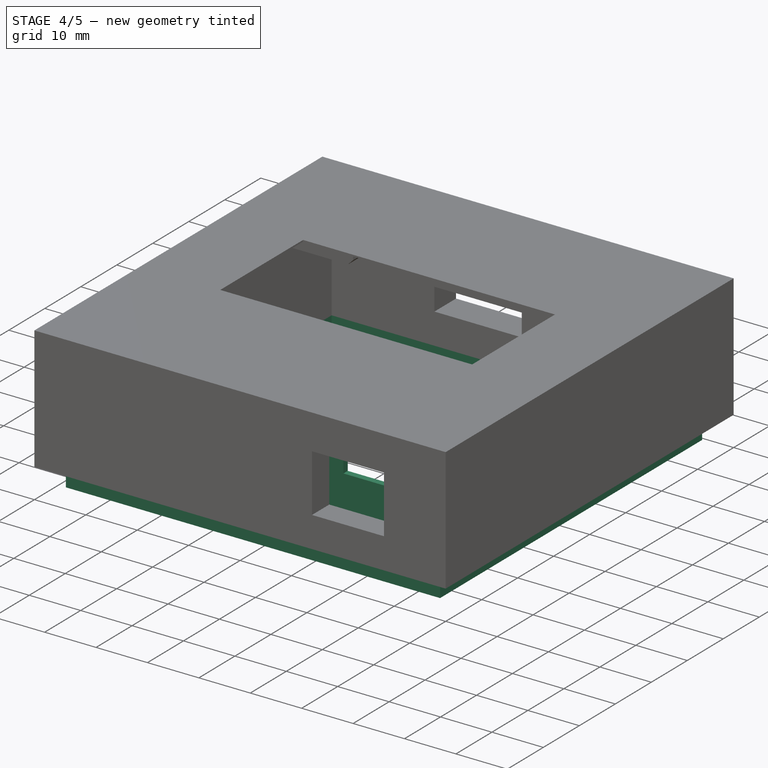
[diagram: stage 4 of 5 — iso view after this stage's code; geometry added in this stage tinted green]
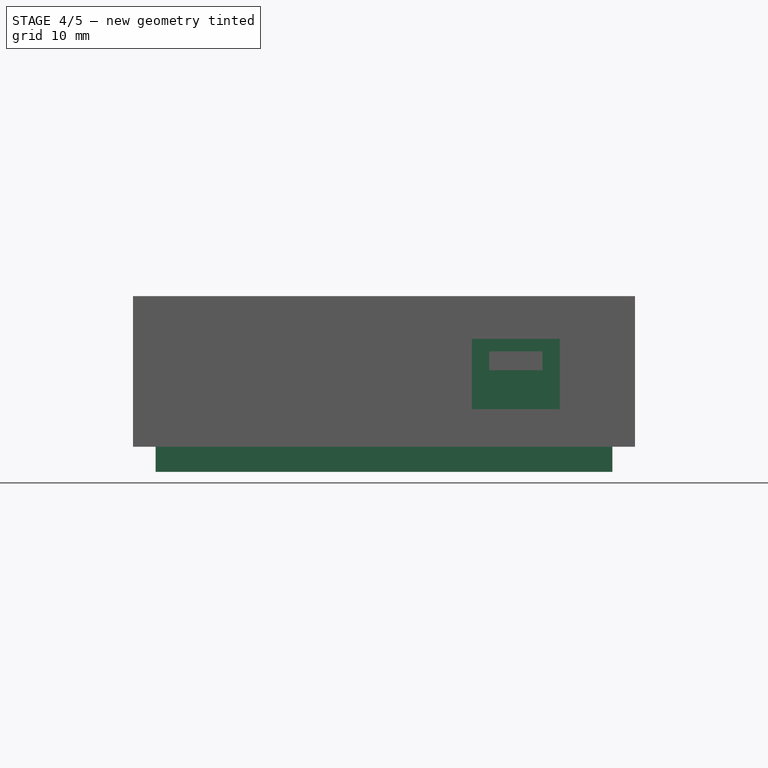
[diagram: stage 4 of 5 — front view after this stage's code; geometry added in this stage tinted green]
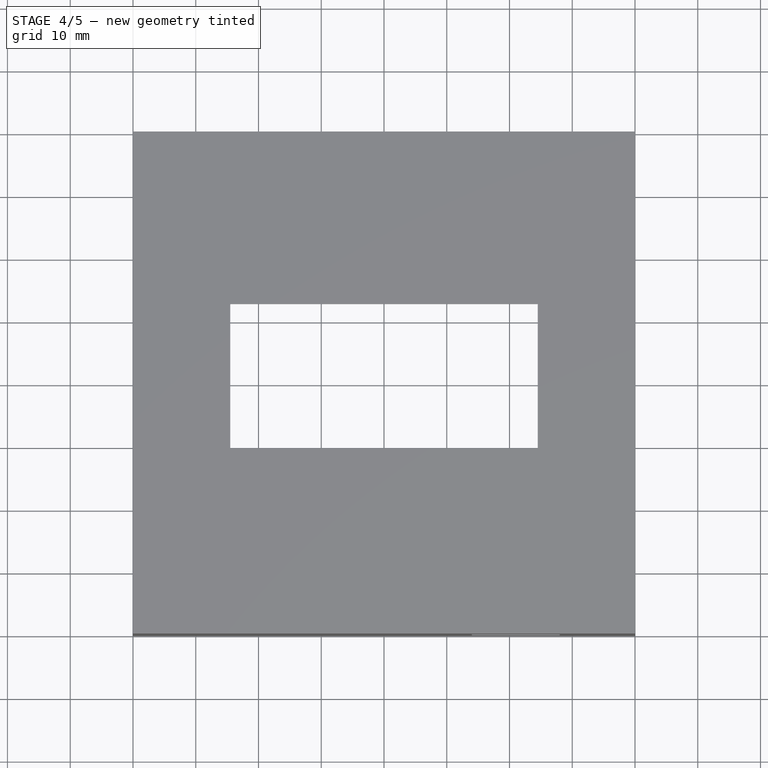
[diagram: stage 4 of 5 — top view after this stage's code; geometry added in this stage tinted green]
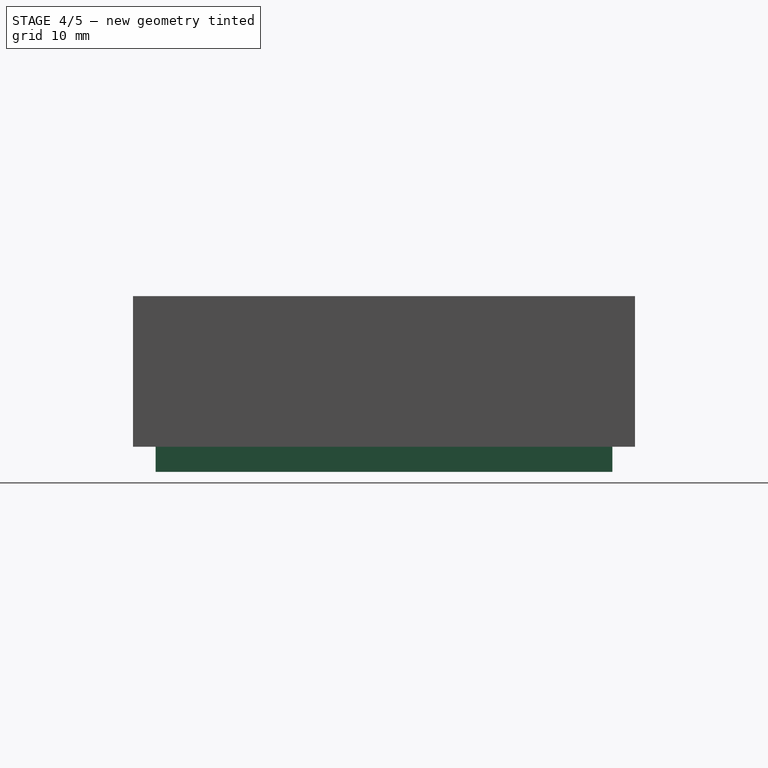
[diagram: stage 4 of 5 — right view after this stage's code; geometry added in this stage tinted green]
FEATURE [PartDesign::Chamfer] Chamfer002
  Angle = 45
  Base = -> Pad007 [Edge97,Edge152]
  BaseFeature = -> Pad007
  ChamferType = 0
  FlipDirection = false
  Size = 1.999
  Size2 = 1
  SupportTransform = false
FEATURE [Sketcher::SketchObject] Sketch011
  FullyConstrained = true
  MapMode = 5
  Placement = pos=(0,-1.4e-15,-6.5) rot=(1,0,0;3.14159rad)
  Support = -> [Chamfer002]
  sketch-geometry (4):
    g0: LineSegment StartX=14 StartY=35.2 StartZ=0 EndX=28 EndY=35.2 EndZ=0
    g1: LineSegment StartX=28 StartY=35.2 StartZ=0 EndX=28 EndY=34 EndZ=0
    g2: LineSegment StartX=28 StartY=34 StartZ=0 EndX=14 EndY=34 EndZ=0
    g3: LineSegment StartX=14 StartY=34 StartZ=0 EndX=14 EndY=35.2 EndZ=0
  constraints (12):
    c: Coincident(g0,g1)
    c: Coincident(g1,g2)
    c: Coincident(g2,g3)
    c: Coincident(g3,g0)
    c: Horizontal(g0)
    c: Horizontal(g2)
    c: Vertical(g1)
    c: Vertical(g3)
    c: Distance(g3) = 1.2
    c: DistanceX(g-1,g1) = 28
    c: Distance(g0) = 14
    c: DistanceY(g-1,g1) = 34
FEATURE [PartDesign::Pad] Pad008
  BaseFeature = -> Chamfer002
  Direction = (1,1,1)
  Length = 10
  Length2 = 100
  Profile = -> Sketch011
  Type = 3
  UpToFace = -> Chamfer002 [Face18]
FEATURE [Sketcher::SketchObject] Sketch012
  FullyConstrained = true
  MapMode = 5
  Placement = pos=(0,-34,7.5e-15) rot=(0,0.707107,0.707107;3.14159rad)
  Support = -> [Pad008]
  sketch-geometry (5):
    g0: LineSegment StartX=-16.75 StartY=-8.5 StartZ=0 EndX=-25.25 EndY=-8.5 EndZ=0
    g1: LineSegment StartX=-25.25 StartY=-8.5 StartZ=0 EndX=-25.25 EndY=-11.5 EndZ=0
    g2: LineSegment StartX=-25.25 StartY=-11.5 StartZ=0 EndX=-16.75 EndY=-11.5 EndZ=0
    g3: LineSegment StartX=-16.75 StartY=-11.5 StartZ=0 EndX=-16.75 EndY=-8.5 EndZ=0
    g4: GeomPoint X=-14 Y=-8.5 Z=0
  constraints (14):
    c: Coincident(g0,g1)
    c: Coincident(g1,g2)
    c: Coincident(g2,g3)
    c: Coincident(g3,g0)
    c: Horizontal(g0)
    c: Horizontal(g2)
    c: Vertical(g1)
    c: Vertical(g3)
    c: Distance(g2) = 8.5
    c: Distance(g3) = 3
    c: DistanceX(g4,g-1) = 14
    c: DistanceY(g4,g0) = 0
    c: DistanceX(g0,g4) = 2.75
    c: DistanceY(g4,g-1) = 8.5
FEATURE [PartDesign::Pocket] Pocket003
  BaseFeature = -> Pad008
  Length = 0
  Length2 = 100
  Profile = -> Sketch012
  Type = 3
  UpToFace = -> Pad008 [Face76]
FEATURE [Sketcher::SketchObject] Sketch013
  FullyConstrained = true
  MapMode = 5
  Placement = pos=(0,0,-23.7) rot=(1,0,0;3.14159rad)
  Support = -> [Pocket003]
  sketch-geometry (8):
    g0: LineSegment StartX=-34 StartY=34 StartZ=0 EndX=34 EndY=34 EndZ=0
    g1: LineSegment StartX=34 StartY=34 StartZ=0 EndX=34 EndY=-34 EndZ=0
    g2: LineSegment StartX=34 StartY=-34 StartZ=0 EndX=-34 EndY=-34 EndZ=0
    g3: LineSegment StartX=-34 StartY=-34 StartZ=0 EndX=-34 EndY=34 EndZ=0
    g4: LineSegment StartX=-36.4 StartY=36.4 StartZ=0 EndX=36.4 EndY=36.4 EndZ=0
    g5: LineSegment StartX=36.4 StartY=36.4 StartZ=0 EndX=36.4 EndY=-36.4 EndZ=0
    g6: LineSegment StartX=36.4 StartY=-36.4 StartZ=0 EndX=-36.4 EndY=-36.4 EndZ=0
    g7: LineSegment StartX=-36.4 StartY=-36.4 StartZ=0 EndX=-36.4 EndY=36.4 EndZ=0
  constraints (24):
    c: Coincident(g0,g1)
    c: Coincident(g1,g2)
    c: Coincident(g2,g3)
    c: Coincident(g3,g0)
    c: Horizontal(g0)
    c: Horizontal(g2)
    c: Vertical(g1)
    c: Vertical(g3)
    c: Coincident(g4,g5)
    c: Coincident(g5,g6)
    c: Coincident(g6,g7)
    c: Coincident(g7,g4)
    c: Horizontal(g4)
    c: Horizontal(g6)
    c: Vertical(g5)
    c: Vertical(g7)
    c: DistanceX(g1,g5) = 2.4
    c: DistanceX(g4,g0) = 2.4
    c: DistanceY(g0,g4) = 2.4
    c: DistanceY(g5,g1) = 2.4
    c: DistanceY(g-1,g0) = 34
    c: DistanceX(g0,g-1) = 34
    c: DistanceX(g-1,g1) = 34
    c: DistanceY(g1,g-1) = 34
FEATURE [PartDesign::Pad] Pad009
  BaseFeature = -> Pocket003
  Direction = (1,1,1)
  Length = 4
  Length2 = 100
  Profile = -> Sketch013
  Type = 0
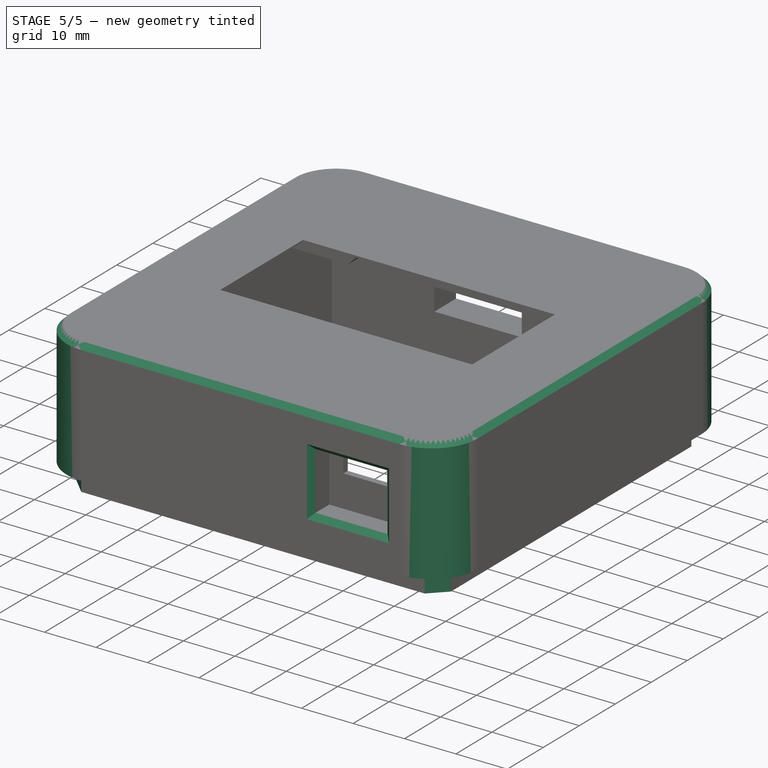
[diagram: stage 5 of 5 — iso view after this stage's code; geometry added in this stage tinted green]
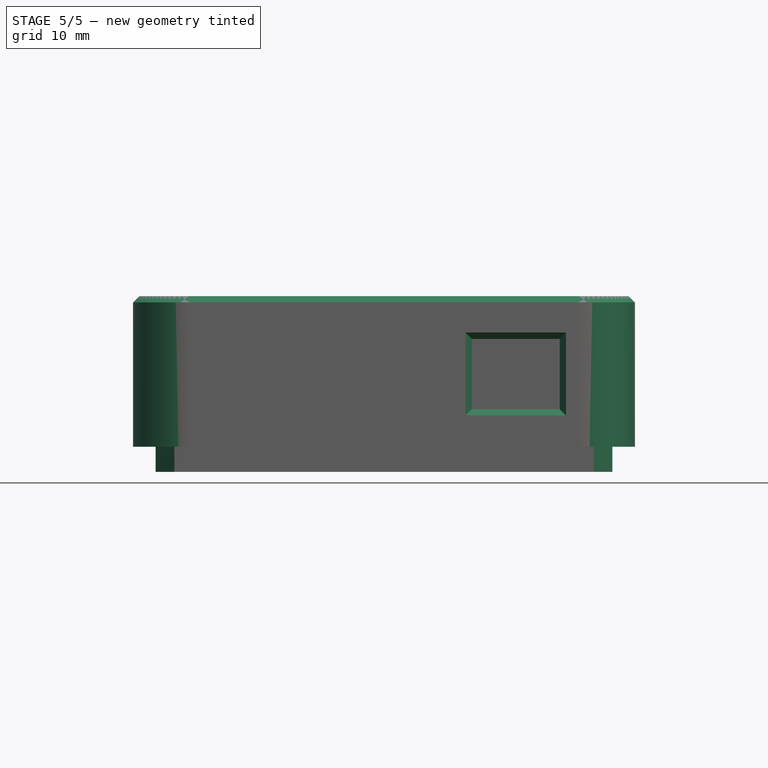
[diagram: stage 5 of 5 — front view after this stage's code; geometry added in this stage tinted green]
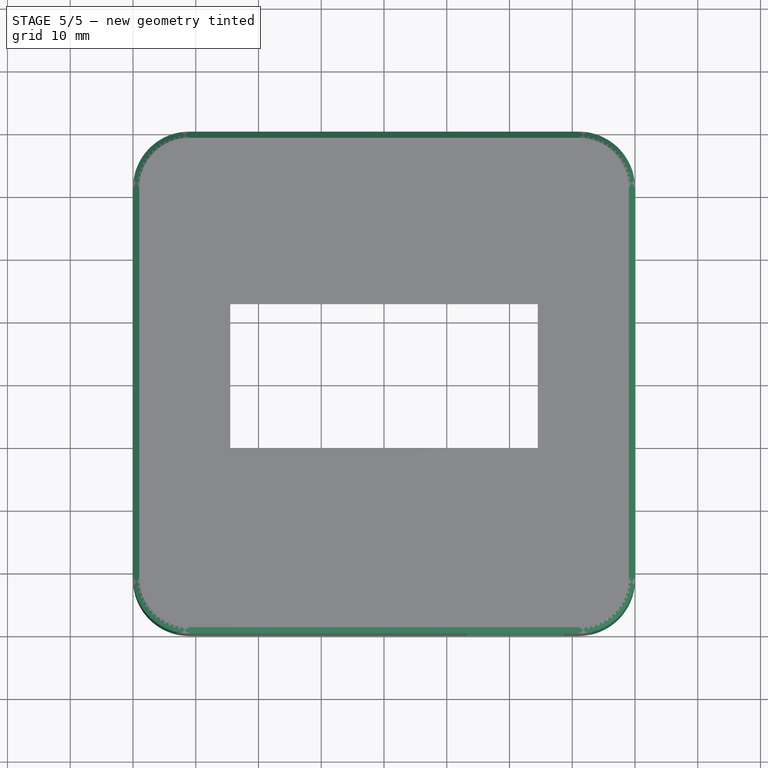
[diagram: stage 5 of 5 — top view after this stage's code; geometry added in this stage tinted green]
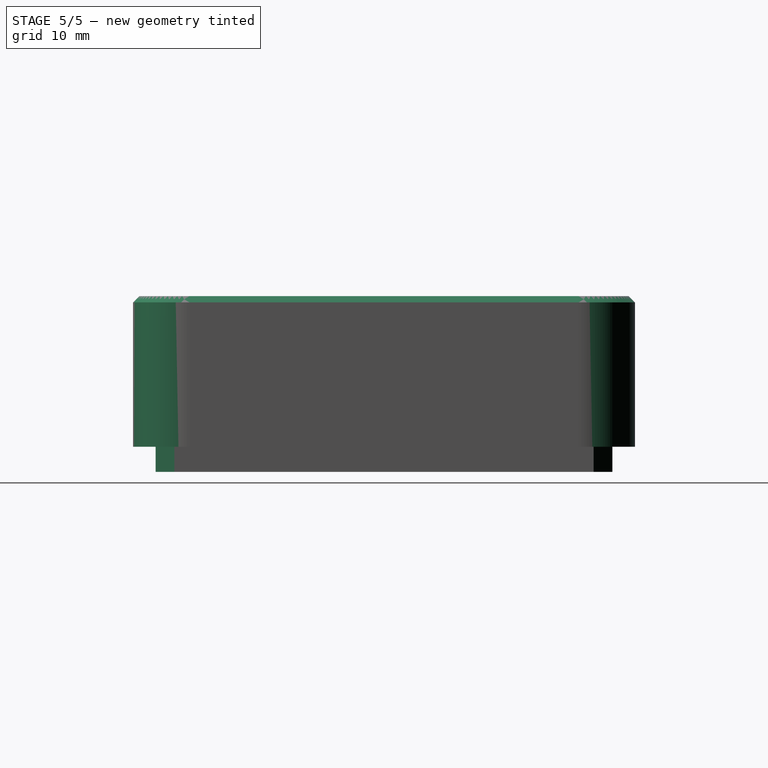
[diagram: stage 5 of 5 — right view after this stage's code; geometry added in this stage tinted green]
FEATURE [PartDesign::Fillet] Fillet
  Base = -> Pad009 [Edge235,Edge224,Edge200,Edge203]
  BaseFeature = -> Pad009
  Radius = 9
  SupportTransform = false
FEATURE [PartDesign::Chamfer] Chamfer003
  Angle = 45
  Base = -> Fillet [Edge56,Edge58,Edge54,Edge53]
  BaseFeature = -> Fillet
  ChamferType = 0
  FlipDirection = false
  Size = 3
  Size2 = 1
  SupportTransform = false
FEATURE [PartDesign::Chamfer] Chamfer004
  Angle = 45
  Base = -> Chamfer003 [Edge38,Edge37,Edge36,Edge39]
  BaseFeature = -> Chamfer003
  ChamferType = 0
  FlipDirection = false
  Size = 1
  Size2 = 1
  SupportTransform = false
FEATURE [PartDesign::Chamfer] Chamfer005
  Angle = 45
  Base = -> Chamfer004 [Edge17,Edge19,Edge21,Edge23,Edge5,Edge18,Edge20,Edge22]
  BaseFeature = -> Chamfer004
  ChamferType = 0
  FlipDirection = false
  Size = 1
  Size2 = 1
  SupportTransform = false
FEATURE [PartDesign::Body] Body  label="top_piece"
  Group = -> [Sketch,Pad,Sketch001,Pad001,Sketch002,Pad002,Sketch003,Pad003,Sketch004,Pad004,Chamfer,Sketch005,Pad005,Chamfer001,Sketch006,Pad006,Sketch007,Pocket,Sketch008,Pocket001,Sketch009,Pocket002,Sketch010,Pad007,Chamfer002,Sketch011,Pad008,Sketch012,Pocket003,Sketch013,Pad009,Fillet,Chamfer003,Chamfer004,Chamfer005]
  Origin = -> Origin
  Tip = -> Chamfer005
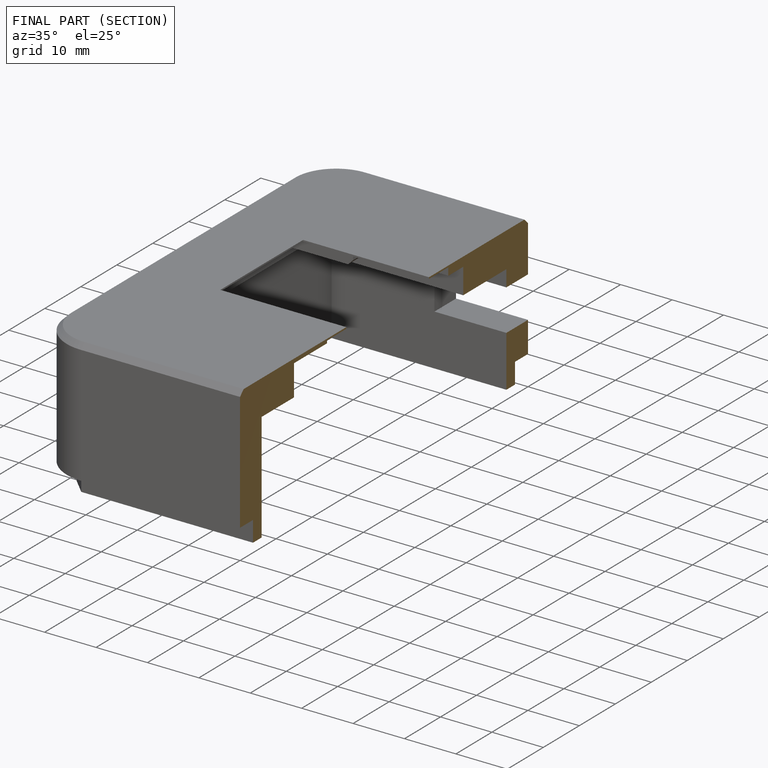
[diagram: finished part — half-section view (interior)]
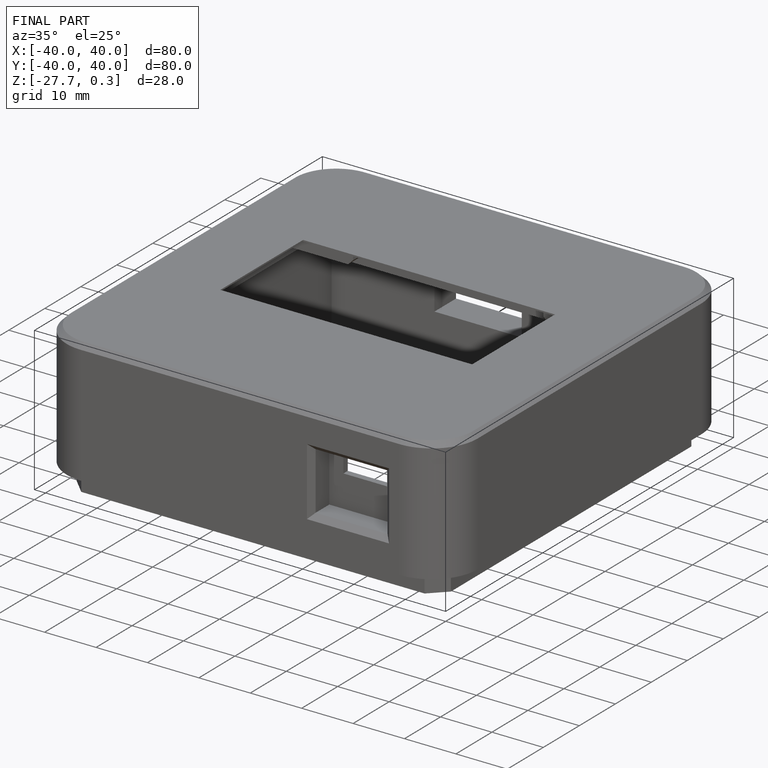
[diagram: finished part — iso view with bounding-box wireframe]
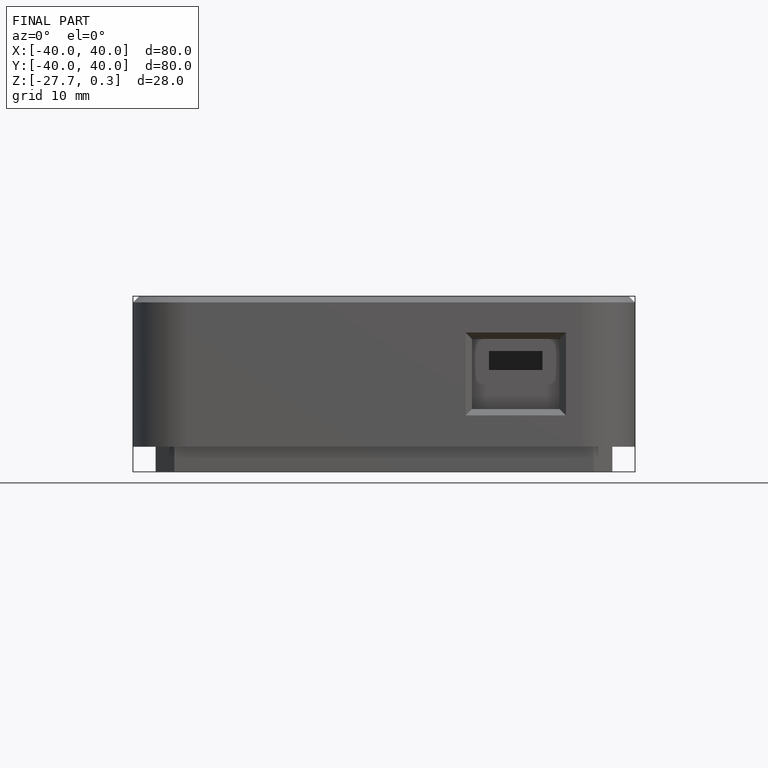
[diagram: finished part — front view with bounding-box wireframe]
